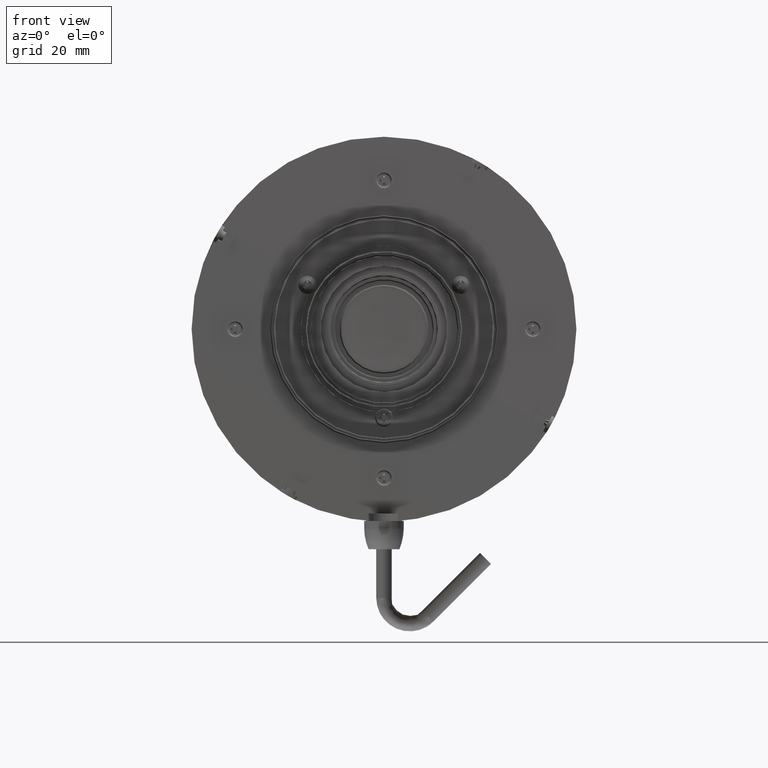
[diagram: clean part render]
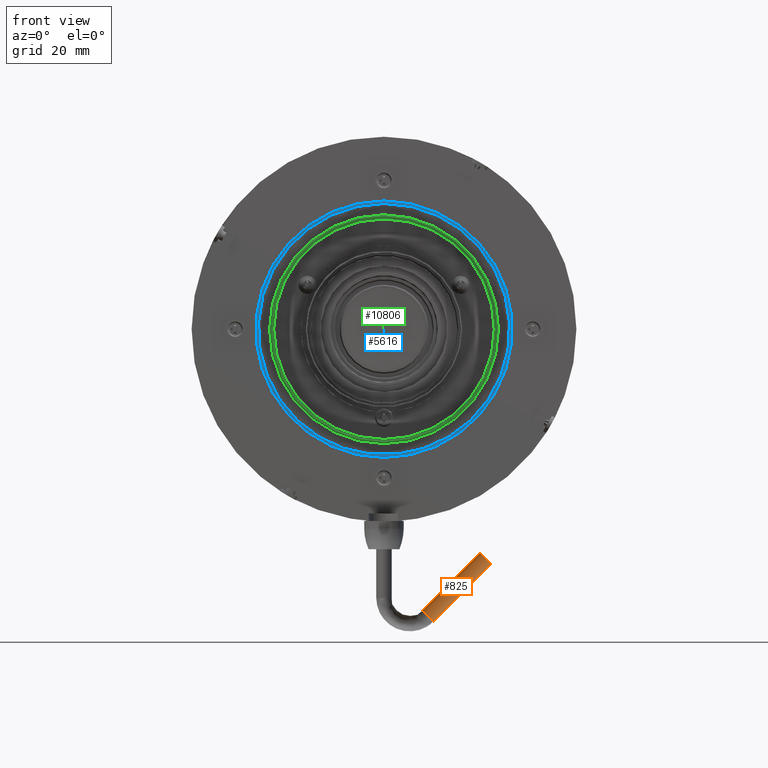
[diagram: same view with three faces highlighted in distinct colors, each labeled with its STEP entity id]
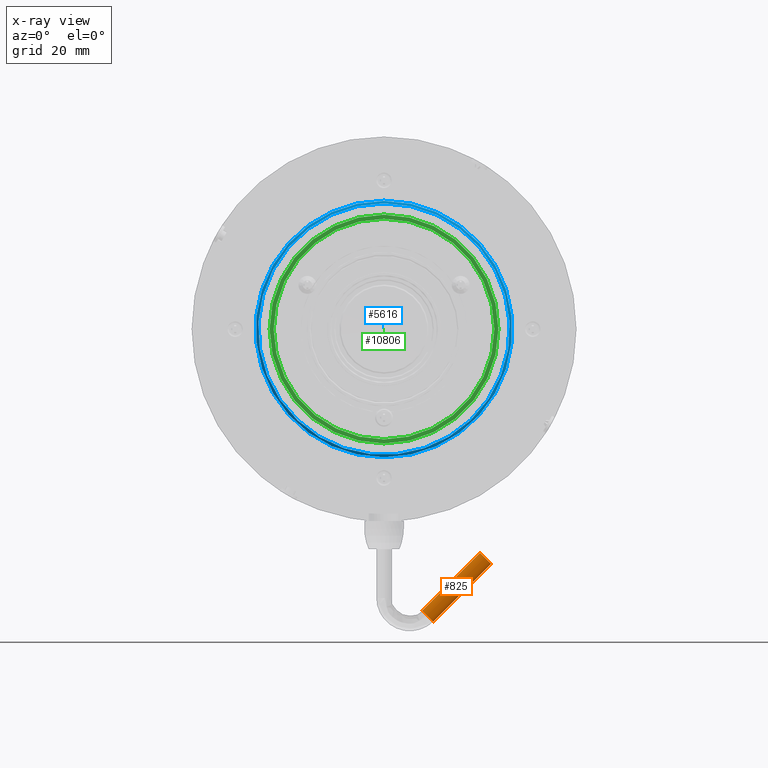
[diagram: x-ray of the same camera — body ghosted, the three highlighted faces saturated]
A machine part, front view with three faces highlighted in distinct colors.
The next image is the same camera in x-ray (body ghosted, the three faces saturated) — at least one of them is partly hidden behind the body in this view.
Their STEP definitions:

[orange] entity #825 — the highlighted cylindrical surface (bore or boss wall) has radius 1.5 mm, axis along (0.7071, -0, 0.7071).
#103 = ORIENTED_EDGE ( 'NONE', *, *, #1574, .T. ) ;
#648 = ORIENTED_EDGE ( 'NONE', *, *, #10916, .F. ) ;
#825 = ADVANCED_FACE ( 'NONE', ( #8555, #8616 ), #2326, .T. ) ;
#832 = DIRECTION ( 'NONE',  ( -0.7071067811865531239, 3.522025279293929379E-17, -0.7071067811865419106 ) ) ;
#1305 = DIRECTION ( 'NONE',  ( 0.7071067811865499042, 0.000000000000000000, -0.7071067811865451302 ) ) ;
#1574 = EDGE_CURVE ( 'NONE', #6959, #6959, #2603, .T. ) ;
#2039 = EDGE_LOOP ( 'NONE', ( #648 ) ) ;
#2326 = CYLINDRICAL_SURFACE ( 'NONE', #4911, 1.499999999999999556 ) ;
#2520 = EDGE_LOOP ( 'NONE', ( #103 ) ) ;
#2603 = CIRCLE ( 'NONE', #3956, 1.499999999999999556 ) ;
#2704 = CARTESIAN_POINT ( 'NONE',  ( 8.535533905932732424, -28.96022168659469997, -55.93680583967686459 ) ) ;
#3499 = AXIS2_PLACEMENT_3D ( 'NONE', #2704, #832, #4519 ) ;
#3623 = DIRECTION ( 'NONE',  ( -0.7071067811865450192, 3.522025279294050173E-17, -0.7071067811865500152 ) ) ;
#3956 = AXIS2_PLACEMENT_3D ( 'NONE', #8341, #3623, #9186 ) ;
#4519 = DIRECTION ( 'NONE',  ( 0.7071067811865417996, 0.000000000000000000, -0.7071067811865533459 ) ) ;
#4911 = AXIS2_PLACEMENT_3D ( 'NONE', #7760, #10362, #1305 ) ;
#6959 = VERTEX_POINT ( 'NONE', #8891 ) ;
#6966 = CIRCLE ( 'NONE', #3499, 1.500000000000001998 ) ;
#7760 = CARTESIAN_POINT ( 'NONE',  ( 8.535533905932739529, -28.96022168659469997, -55.93680583967690012 ) ) ;
#8341 = CARTESIAN_POINT ( 'NONE',  ( 19.78998865576187782, -28.96022168659469997, -44.68235108984768544 ) ) ;
#8555 = FACE_OUTER_BOUND ( 'NONE', #2039, .T. ) ;
#8616 = FACE_OUTER_BOUND ( 'NONE', #2520, .T. ) ;
#8891 = CARTESIAN_POINT ( 'NONE',  ( 20.85064882754170057, -28.96022168659469997, -45.74301126162750109 ) ) ;
#8989 = CARTESIAN_POINT ( 'NONE',  ( 9.596194077712546289, -28.96022168659469997, -56.99746601145669445 ) ) ;
#9186 = DIRECTION ( 'NONE',  ( 0.7071067811865499042, 0.000000000000000000, -0.7071067811865451302 ) ) ;
#10362 = DIRECTION ( 'NONE',  ( 0.7071067811865450192, -3.522025279294050173E-17, 0.7071067811865500152 ) ) ;
#10916 = EDGE_CURVE ( 'NONE', #11834, #11834, #6966, .T. ) ;
#11834 = VERTEX_POINT ( 'NONE', #8989 ) ;

[blue] entity #5616 — the highlighted conical surface has half-angle 45 deg.
#1200 = AXIS2_PLACEMENT_3D ( 'NONE', #4255, #10780, #2505 ) ;
#1381 = EDGE_LOOP ( 'NONE', ( #11047 ) ) ;
#1708 = DIRECTION ( 'NONE',  ( -0.000000000000000000, 1.000000000000000000, 0.000000000000000000 ) ) ;
#2105 = DIRECTION ( 'NONE',  ( -0.000000000000000000, 1.000000000000000000, 0.000000000000000000 ) ) ;
#2449 = CONICAL_SURFACE ( 'NONE', #3989, 25.00000000000000000, 0.7853981633974482790 ) ;
#2505 = DIRECTION ( 'NONE',  ( 0.000000000000000000, 0.000000000000000000, -1.000000000000000000 ) ) ;
#3247 = AXIS2_PLACEMENT_3D ( 'NONE', #6632, #2105, #10493 ) ;
#3989 = AXIS2_PLACEMENT_3D ( 'NONE', #5514, #1708, #6421 ) ;
#4255 = CARTESIAN_POINT ( 'NONE',  ( 0.000000000000000000, -82.49969672688550304, 0.000000000000000000 ) ) ;
#5275 = FACE_BOUND ( 'NONE', #7355, .T. ) ;
#5514 = CARTESIAN_POINT ( 'NONE',  ( 0.000000000000000000, -82.49969672688550304, 0.000000000000000000 ) ) ;
#5616 = ADVANCED_FACE ( 'NONE', ( #11686, #5275 ), #2449, .T. ) ;
#6421 = DIRECTION ( 'NONE',  ( 0.000000000000000000, 0.000000000000000000, 1.000000000000000000 ) ) ;
#6632 = CARTESIAN_POINT ( 'NONE',  ( 0.000000000000000000, -82.99969672688550304, 0.000000000000000000 ) ) ;
#6646 = CARTESIAN_POINT ( 'NONE',  ( 0.000000000000000000, -82.99969672688550304, 24.50000000000000000 ) ) ;
#7178 = VERTEX_POINT ( 'NONE', #8031 ) ;
#7355 = EDGE_LOOP ( 'NONE', ( #9665 ) ) ;
#7585 = EDGE_CURVE ( 'NONE', #9486, #9486, #10784, .T. ) ;
#8031 = CARTESIAN_POINT ( 'NONE',  ( 0.000000000000000000, -82.49969672688550304, -25.00000000000000000 ) ) ;
#9486 = VERTEX_POINT ( 'NONE', #6646 ) ;
#9665 = ORIENTED_EDGE ( 'NONE', *, *, #7585, .T. ) ;
#10493 = DIRECTION ( 'NONE',  ( 0.000000000000000000, 0.000000000000000000, 1.000000000000000000 ) ) ;
#10780 = DIRECTION ( 'NONE',  ( -0.000000000000000000, 1.000000000000000000, -0.000000000000000000 ) ) ;
#10784 = CIRCLE ( 'NONE', #3247, 24.50000000000000000 ) ;
#11047 = ORIENTED_EDGE ( 'NONE', *, *, #11677, .F. ) ;
#11612 = CIRCLE ( 'NONE', #1200, 25.00000000000000000 ) ;
#11677 = EDGE_CURVE ( 'NONE', #7178, #7178, #11612, .T. ) ;
#11686 = FACE_OUTER_BOUND ( 'NONE', #1381, .T. ) ;

[green] entity #10806 — the highlighted planar face has unit normal (0, 1, 0).
#247 = EDGE_CURVE ( 'NONE', #1892, #1892, #266, .T. ) ;
#255 = DIRECTION ( 'NONE',  ( 0.000000000000000000, -1.000000000000000000, 0.000000000000000000 ) ) ;
#266 = CIRCLE ( 'NONE', #8937, 22.29999999999999716 ) ;
#524 = AXIS2_PLACEMENT_3D ( 'NONE', #1226, #255, #3931 ) ;
#1226 = CARTESIAN_POINT ( 'NONE',  ( 0.000000000000000000, -83.99969672688550304, 0.000000000000000000 ) ) ;
#1809 = VERTEX_POINT ( 'NONE', #5385 ) ;
#1892 = VERTEX_POINT ( 'NONE', #11134 ) ;
#3506 = DIRECTION ( 'NONE',  ( -0.000000000000000000, 1.000000000000000000, 0.000000000000000000 ) ) ;
#3931 = DIRECTION ( 'NONE',  ( 0.000000000000000000, 0.000000000000000000, -1.000000000000000000 ) ) ;
#4242 = AXIS2_PLACEMENT_3D ( 'NONE', #10701, #5022, #4965 ) ;
#4965 = DIRECTION ( 'NONE',  ( 0.000000000000000000, -0.000000000000000000, 1.000000000000000000 ) ) ;
#5022 = DIRECTION ( 'NONE',  ( 0.000000000000000000, 1.000000000000000000, 0.000000000000000000 ) ) ;
#5385 = CARTESIAN_POINT ( 'NONE',  ( 0.000000000000000000, -83.99969672688550304, -21.50000000000000000 ) ) ;
#5735 = CIRCLE ( 'NONE', #524, 21.50000000000000000 ) ;
#5837 = EDGE_CURVE ( 'NONE', #1809, #1809, #5735, .T. ) ;
#6528 = CARTESIAN_POINT ( 'NONE',  ( 0.000000000000000000, -83.99969672688550304, 0.000000000000000000 ) ) ;
#6781 = FACE_BOUND ( 'NONE', #9883, .T. ) ;
#7011 = FACE_OUTER_BOUND ( 'NONE', #7375, .T. ) ;
#7375 = EDGE_LOOP ( 'NONE', ( #9493 ) ) ;
#7561 = ORIENTED_EDGE ( 'NONE', *, *, #5837, .F. ) ;
#8937 = AXIS2_PLACEMENT_3D ( 'NONE', #6528, #3506, #10086 ) ;
#9493 = ORIENTED_EDGE ( 'NONE', *, *, #247, .F. ) ;
#9883 = EDGE_LOOP ( 'NONE', ( #7561 ) ) ;
#10086 = DIRECTION ( 'NONE',  ( 0.000000000000000000, 0.000000000000000000, 1.000000000000000000 ) ) ;
#10579 = PLANE ( 'NONE',  #4242 ) ;
#10701 = CARTESIAN_POINT ( 'NONE',  ( 0.000000000000000000, -83.99969672688550304, 21.50000000000000000 ) ) ;
#10806 = ADVANCED_FACE ( 'NONE', ( #7011, #6781 ), #10579, .F. ) ;
#11134 = CARTESIAN_POINT ( 'NONE',  ( 0.000000000000000000, -83.99969672688550304, 22.29999999999999716 ) ) ;